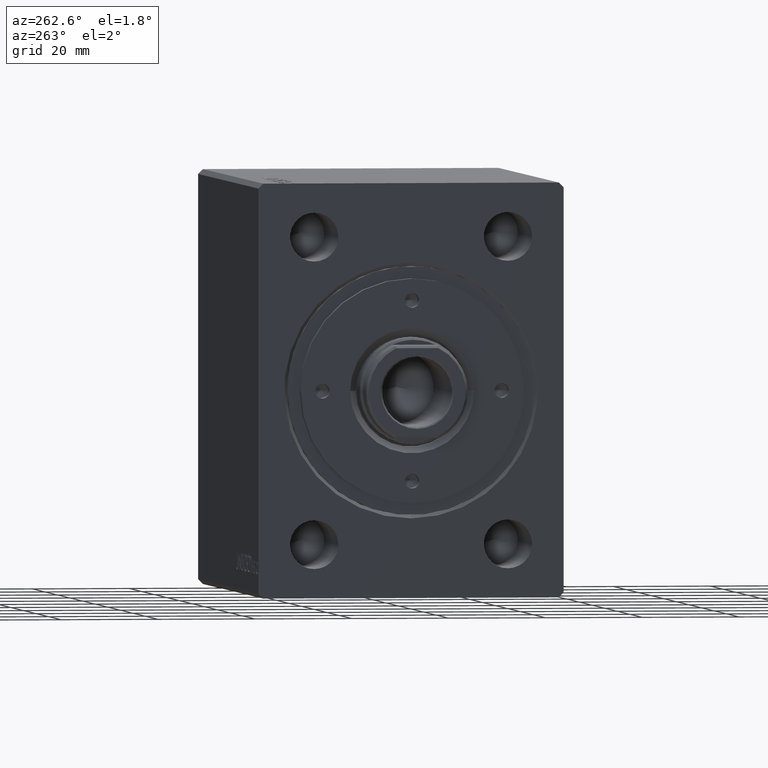
[diagram: clean part render]
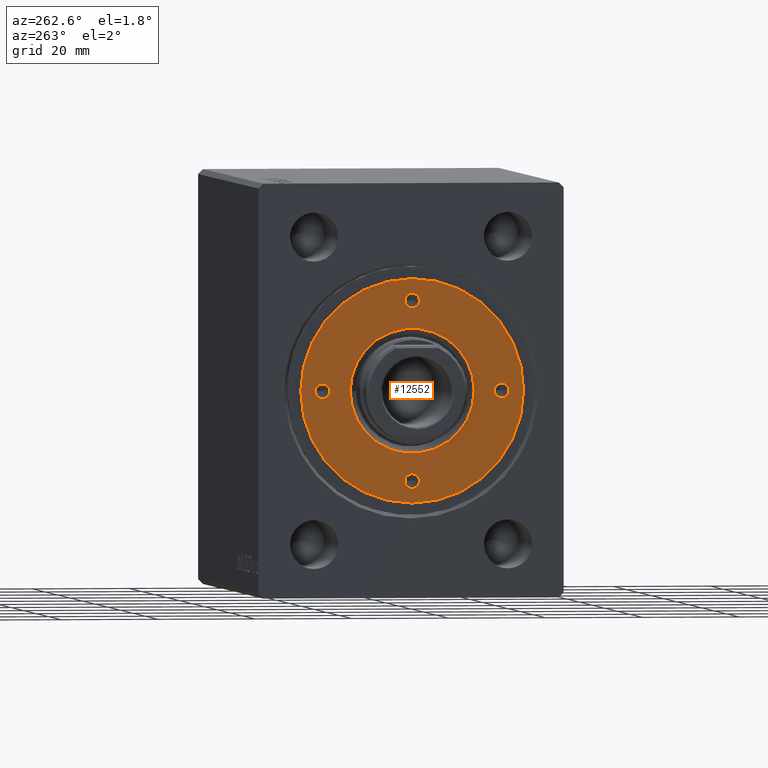
[diagram: same view with one face highlighted and labeled with its STEP entity id]
A machine part, auxiliary view. The second image highlights one B-rep face of the part: STEP entity #12552.
In plain terms, the highlighted planar face has unit normal (-1, 0, 0).
Its self-contained STEP definition (entity closure, byte-faithful):
#286 = DIRECTION ( 'NONE',  ( 1.000000000000000000, 0.000000000000000000, 0.000000000000000000 ) ) ;
#880 = ORIENTED_EDGE ( 'NONE', *, *, #30603, .T. ) ;
#959 = CARTESIAN_POINT ( 'NONE',  ( 18.50000000000000000, 0.000000000000000000, 72.79999999999998295 ) ) ;
#1810 = VERTEX_POINT ( 'NONE', #19647 ) ;
#1972 = ORIENTED_EDGE ( 'NONE', *, *, #25820, .F. ) ;
#2441 = CARTESIAN_POINT ( 'NONE',  ( 12.79999999999997229, 0.000000000000000000, 72.79999999999998295 ) ) ;
#3448 = CARTESIAN_POINT ( 'NONE',  ( 0.000000000000000000, 0.000000000000000000, 72.79999999999998295 ) ) ;
#3763 = ORIENTED_EDGE ( 'NONE', *, *, #22709, .T. ) ;
#4455 = CARTESIAN_POINT ( 'NONE',  ( -19.99999999999999645, 1.836970198721027222E-16, 72.79999999999998295 ) ) ;
#4972 = AXIS2_PLACEMENT_3D ( 'NONE', #39580, #36886, #9065 ) ;
#5570 = CARTESIAN_POINT ( 'NONE',  ( -18.50000000000000000, 0.000000000000000000, 72.79999999999998295 ) ) ;
#6025 = ORIENTED_EDGE ( 'NONE', *, *, #20954, .F. ) ;
#6458 = AXIS2_PLACEMENT_3D ( 'NONE', #5570, #33394, #30062 ) ;
#6569 = ORIENTED_EDGE ( 'NONE', *, *, #14132, .T. ) ;
#6572 = DIRECTION ( 'NONE',  ( 0.000000000000000000, 0.000000000000000000, 1.000000000000000000 ) ) ;
#6631 = DIRECTION ( 'NONE',  ( 1.000000000000000000, 0.000000000000000000, 0.000000000000000000 ) ) ;
#7117 = CIRCLE ( 'NONE', #19184, 12.79999999999997051 ) ;
#7366 = DIRECTION ( 'NONE',  ( -0.000000000000000000, -0.000000000000000000, 1.000000000000000000 ) ) ;
#8231 = ORIENTED_EDGE ( 'NONE', *, *, #8247, .F. ) ;
#8247 = EDGE_CURVE ( 'NONE', #35550, #28768, #23213, .T. ) ;
#9065 = DIRECTION ( 'NONE',  ( 1.000000000000000000, 0.000000000000000000, 0.000000000000000000 ) ) ;
#9175 = CIRCLE ( 'NONE', #19825, 1.499999999999997780 ) ;
#9453 = EDGE_CURVE ( 'NONE', #37888, #30832, #18158, .T. ) ;
#9701 = CARTESIAN_POINT ( 'NONE',  ( -12.79999999999997229, 1.567547902908608634E-15, 72.79999999999998295 ) ) ;
#9742 = VERTEX_POINT ( 'NONE', #30434 ) ;
#10183 = VERTEX_POINT ( 'NONE', #34240 ) ;
#10955 = CARTESIAN_POINT ( 'NONE',  ( 19.99999999999999645, 0.000000000000000000, 72.79999999999998295 ) ) ;
#11350 = CARTESIAN_POINT ( 'NONE',  ( 0.000000000000000000, 18.50000000000000000, 72.79999999999998295 ) ) ;
#12552 = ADVANCED_FACE ( 'NONE', ( #20384, #13691, #13255, #13030, #23057, #26856 ), #43558, .T. ) ;
#13030 = FACE_BOUND ( 'NONE', #17521, .T. ) ;
#13255 = FACE_BOUND ( 'NONE', #42132, .T. ) ;
#13572 = EDGE_CURVE ( 'NONE', #1810, #39551, #9175, .T. ) ;
#13691 = FACE_BOUND ( 'NONE', #13727, .T. ) ;
#13727 = EDGE_LOOP ( 'NONE', ( #16307, #1972 ) ) ;
#14039 = CARTESIAN_POINT ( 'NONE',  ( 18.50000000000000000, 0.000000000000000000, 72.79999999999998295 ) ) ;
#14097 = DIRECTION ( 'NONE',  ( 0.000000000000000000, 0.000000000000000000, 1.000000000000000000 ) ) ;
#14132 = EDGE_CURVE ( 'NONE', #23991, #25262, #7117, .T. ) ;
#14307 = EDGE_CURVE ( 'NONE', #28768, #35550, #15612, .T. ) ;
#14629 = CIRCLE ( 'NONE', #19610, 12.79999999999997051 ) ;
#14736 = EDGE_CURVE ( 'NONE', #10183, #38073, #24178, .T. ) ;
#14749 = CIRCLE ( 'NONE', #26126, 1.499999999999996891 ) ;
#15612 = CIRCLE ( 'NONE', #39096, 1.499999999999996891 ) ;
#15656 = DIRECTION ( 'NONE',  ( -0.000000000000000000, -0.000000000000000000, 1.000000000000000000 ) ) ;
#15851 = CIRCLE ( 'NONE', #26514, 1.499999999999997780 ) ;
#15915 = ORIENTED_EDGE ( 'NONE', *, *, #14736, .T. ) ;
#16307 = ORIENTED_EDGE ( 'NONE', *, *, #39577, .F. ) ;
#16647 = CARTESIAN_POINT ( 'NONE',  ( -18.50000000000000000, 0.000000000000000000, 72.79999999999998295 ) ) ;
#17521 = EDGE_LOOP ( 'NONE', ( #38939, #8231 ) ) ;
#17596 = CARTESIAN_POINT ( 'NONE',  ( 0.000000000000000000, 0.000000000000000000, 72.79999999999998295 ) ) ;
#18158 = CIRCLE ( 'NONE', #43056, 1.499999999999997780 ) ;
#18777 = ORIENTED_EDGE ( 'NONE', *, *, #13572, .F. ) ;
#19184 = AXIS2_PLACEMENT_3D ( 'NONE', #17596, #24061, #30529 ) ;
#19610 = AXIS2_PLACEMENT_3D ( 'NONE', #28608, #31729, #38613 ) ;
#19647 = CARTESIAN_POINT ( 'NONE',  ( -17.00000000000000000, 0.000000000000000000, 72.79999999999998295 ) ) ;
#19825 = AXIS2_PLACEMENT_3D ( 'NONE', #16647, #30904, #6631 ) ;
#20087 = VERTEX_POINT ( 'NONE', #34424 ) ;
#20384 = FACE_BOUND ( 'NONE', #35654, .T. ) ;
#20954 = EDGE_CURVE ( 'NONE', #39551, #1810, #25768, .T. ) ;
#21463 = EDGE_LOOP ( 'NONE', ( #6569, #880 ) ) ;
#22709 = EDGE_CURVE ( 'NONE', #38073, #10183, #37841, .T. ) ;
#23057 = FACE_BOUND ( 'NONE', #21463, .T. ) ;
#23213 = CIRCLE ( 'NONE', #34604, 1.499999999999996891 ) ;
#23565 = DIRECTION ( 'NONE',  ( -0.000000000000000000, -0.000000000000000000, 1.000000000000000000 ) ) ;
#23991 = VERTEX_POINT ( 'NONE', #2441 ) ;
#24061 = DIRECTION ( 'NONE',  ( -0.000000000000000000, -0.000000000000000000, -1.000000000000000000 ) ) ;
#24178 = CIRCLE ( 'NONE', #4972, 23.00000000000000000 ) ;
#24349 = DIRECTION ( 'NONE',  ( 1.000000000000000000, 0.000000000000000000, 0.000000000000000000 ) ) ;
#24935 = DIRECTION ( 'NONE',  ( -0.000000000000000000, -0.000000000000000000, 1.000000000000000000 ) ) ;
#25262 = VERTEX_POINT ( 'NONE', #9701 ) ;
#25768 = CIRCLE ( 'NONE', #6458, 1.499999999999997780 ) ;
#25820 = EDGE_CURVE ( 'NONE', #9742, #20087, #27228, .T. ) ;
#25995 = CARTESIAN_POINT ( 'NONE',  ( -1.499999999999996891, -18.50000000000000000, 72.79999999999998295 ) ) ;
#26126 = AXIS2_PLACEMENT_3D ( 'NONE', #41651, #42538, #41873 ) ;
#26514 = AXIS2_PLACEMENT_3D ( 'NONE', #959, #27916, #286 ) ;
#26856 = FACE_OUTER_BOUND ( 'NONE', #36710, .T. ) ;
#27228 = CIRCLE ( 'NONE', #30786, 1.499999999999996891 ) ;
#27334 = ORIENTED_EDGE ( 'NONE', *, *, #9453, .F. ) ;
#27638 = DIRECTION ( 'NONE',  ( 1.000000000000000000, 0.000000000000000000, 0.000000000000000000 ) ) ;
#27916 = DIRECTION ( 'NONE',  ( -0.000000000000000000, -0.000000000000000000, 1.000000000000000000 ) ) ;
#27918 = CARTESIAN_POINT ( 'NONE',  ( 0.000000000000000000, 0.000000000000000000, 72.79999999999998295 ) ) ;
#28398 = CARTESIAN_POINT ( 'NONE',  ( 0.000000000000000000, -18.50000000000000000, 72.79999999999998295 ) ) ;
#28608 = CARTESIAN_POINT ( 'NONE',  ( 0.000000000000000000, 0.000000000000000000, 72.79999999999998295 ) ) ;
#28616 = DIRECTION ( 'NONE',  ( 1.000000000000000000, 0.000000000000000000, 0.000000000000000000 ) ) ;
#28768 = VERTEX_POINT ( 'NONE', #40013 ) ;
#30062 = DIRECTION ( 'NONE',  ( 1.000000000000000000, 0.000000000000000000, 0.000000000000000000 ) ) ;
#30416 = DIRECTION ( 'NONE',  ( 1.000000000000000000, 0.000000000000000000, -0.000000000000000000 ) ) ;
#30434 = CARTESIAN_POINT ( 'NONE',  ( -1.499999999999996891, 18.50000000000000000, 72.79999999999998295 ) ) ;
#30529 = DIRECTION ( 'NONE',  ( 1.000000000000000000, 0.000000000000000000, 0.000000000000000000 ) ) ;
#30603 = EDGE_CURVE ( 'NONE', #25262, #23991, #14629, .T. ) ;
#30786 = AXIS2_PLACEMENT_3D ( 'NONE', #11350, #24935, #39786 ) ;
#30832 = VERTEX_POINT ( 'NONE', #10955 ) ;
#30904 = DIRECTION ( 'NONE',  ( -0.000000000000000000, -0.000000000000000000, 1.000000000000000000 ) ) ;
#31729 = DIRECTION ( 'NONE',  ( -0.000000000000000000, -0.000000000000000000, -1.000000000000000000 ) ) ;
#32716 = DIRECTION ( 'NONE',  ( 1.000000000000000000, 0.000000000000000000, 0.000000000000000000 ) ) ;
#33394 = DIRECTION ( 'NONE',  ( -0.000000000000000000, -0.000000000000000000, 1.000000000000000000 ) ) ;
#34240 = CARTESIAN_POINT ( 'NONE',  ( 23.00000000000000000, 2.816687638038912352E-15, 72.79999999999998295 ) ) ;
#34424 = CARTESIAN_POINT ( 'NONE',  ( 1.499999999999996891, 18.50000000000000000, 72.79999999999998295 ) ) ;
#34604 = AXIS2_PLACEMENT_3D ( 'NONE', #28398, #15656, #28616 ) ;
#35440 = ORIENTED_EDGE ( 'NONE', *, *, #40073, .F. ) ;
#35550 = VERTEX_POINT ( 'NONE', #25995 ) ;
#35654 = EDGE_LOOP ( 'NONE', ( #18777, #6025 ) ) ;
#35689 = AXIS2_PLACEMENT_3D ( 'NONE', #27918, #14097, #24349 ) ;
#36710 = EDGE_LOOP ( 'NONE', ( #3763, #15915 ) ) ;
#36719 = CARTESIAN_POINT ( 'NONE',  ( 0.000000000000000000, -18.50000000000000000, 72.79999999999998295 ) ) ;
#36886 = DIRECTION ( 'NONE',  ( 0.000000000000000000, 0.000000000000000000, 1.000000000000000000 ) ) ;
#37841 = CIRCLE ( 'NONE', #35689, 23.00000000000000000 ) ;
#37888 = VERTEX_POINT ( 'NONE', #38190 ) ;
#38073 = VERTEX_POINT ( 'NONE', #43286 ) ;
#38190 = CARTESIAN_POINT ( 'NONE',  ( 17.00000000000000000, 1.836970198721027222E-16, 72.79999999999998295 ) ) ;
#38613 = DIRECTION ( 'NONE',  ( 1.000000000000000000, 0.000000000000000000, 0.000000000000000000 ) ) ;
#38939 = ORIENTED_EDGE ( 'NONE', *, *, #14307, .F. ) ;
#39096 = AXIS2_PLACEMENT_3D ( 'NONE', #36719, #23565, #32716 ) ;
#39551 = VERTEX_POINT ( 'NONE', #4455 ) ;
#39577 = EDGE_CURVE ( 'NONE', #20087, #9742, #14749, .T. ) ;
#39580 = CARTESIAN_POINT ( 'NONE',  ( 0.000000000000000000, 0.000000000000000000, 72.79999999999998295 ) ) ;
#39786 = DIRECTION ( 'NONE',  ( 1.000000000000000000, 0.000000000000000000, 0.000000000000000000 ) ) ;
#40013 = CARTESIAN_POINT ( 'NONE',  ( 1.499999999999996891, -18.50000000000000000, 72.79999999999998295 ) ) ;
#40073 = EDGE_CURVE ( 'NONE', #30832, #37888, #15851, .T. ) ;
#41651 = CARTESIAN_POINT ( 'NONE',  ( 0.000000000000000000, 18.50000000000000000, 72.79999999999998295 ) ) ;
#41873 = DIRECTION ( 'NONE',  ( 1.000000000000000000, 0.000000000000000000, 0.000000000000000000 ) ) ;
#42132 = EDGE_LOOP ( 'NONE', ( #35440, #27334 ) ) ;
#42538 = DIRECTION ( 'NONE',  ( -0.000000000000000000, -0.000000000000000000, 1.000000000000000000 ) ) ;
#43056 = AXIS2_PLACEMENT_3D ( 'NONE', #14039, #7366, #27638 ) ;
#43286 = CARTESIAN_POINT ( 'NONE',  ( -23.00000000000000000, 0.000000000000000000, 72.79999999999998295 ) ) ;
#43558 = PLANE ( 'NONE',  #43963 ) ;
#43963 = AXIS2_PLACEMENT_3D ( 'NONE', #3448, #6572, #30416 ) ;